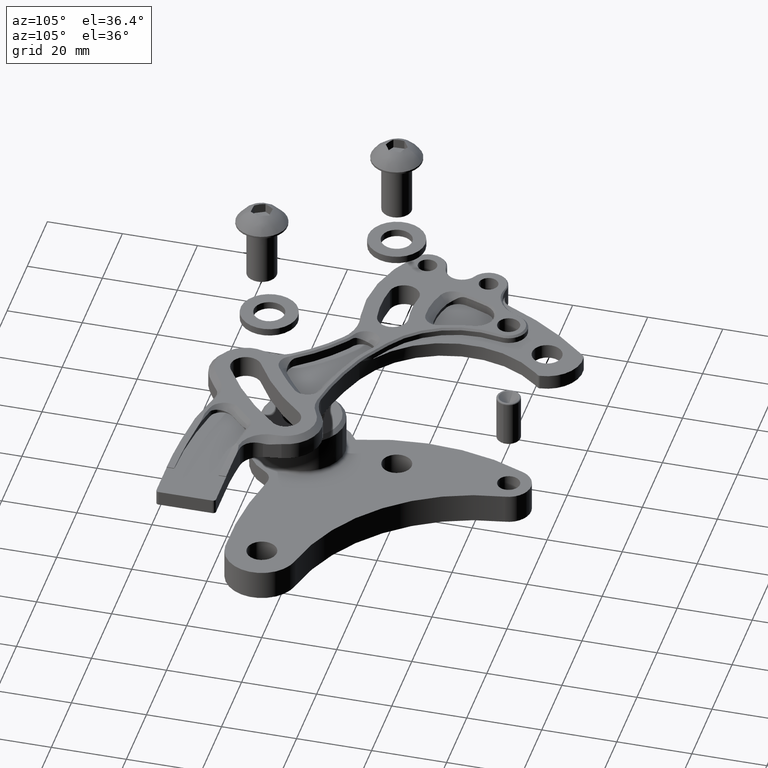
[diagram: clean part render]
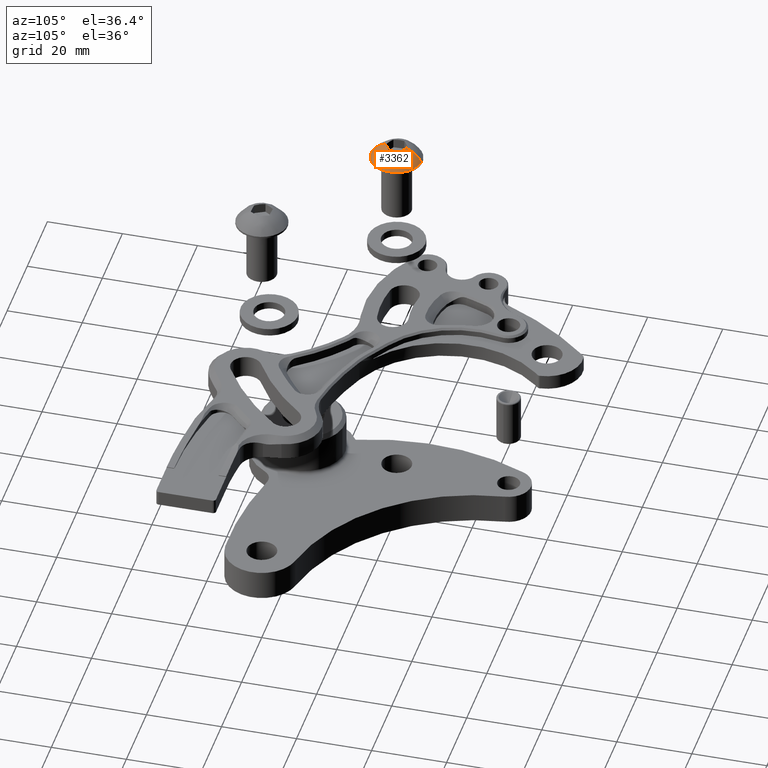
[diagram: same view with one face highlighted and labeled with its STEP entity id]
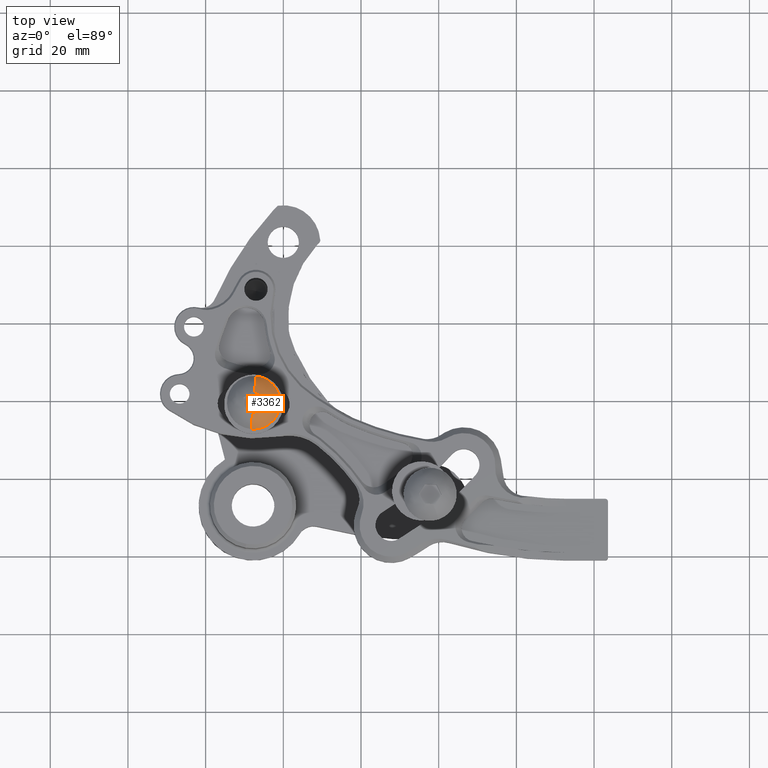
[diagram: same view with one face highlighted and labeled with its STEP entity id]
A machine part, auxiliary view. The second image highlights one B-rep face of the part: STEP entity #3362.
A second angle (top view) of the same face is appended — the face is thin or edge-on in the first view.
In plain terms, the highlighted face is a freeform B-spline surface patch.
Its self-contained STEP definition (entity closure, byte-faithful):
#61 = CARTESIAN_POINT ( 'NONE',  ( -0.8891558262419051450, -0.1385185032015558704, -3.009917503558934796E-15 ) ) ;
#153 = CIRCLE ( 'NONE', #5342, 0.3096579724409448398 ) ;
#343 = CARTESIAN_POINT ( 'NONE',  ( -0.4974286417322836273, 1.365923996832131609E-16, 0.0000000000000000000 ) ) ;
#363 = DIRECTION ( 'NONE',  ( -5.064886061246141354E-16, -1.000000000000000000, 0.0000000000000000000 ) ) ;
#440 = ORIENTED_EDGE ( 'NONE', *, *, #4424, .T. ) ;
#457 = EDGE_CURVE ( 'NONE', #6829, #3636, #4998, .T. ) ;
#507 = CARTESIAN_POINT ( 'NONE',  ( -0.7888430743799711431, -0.05528387702315540331, 0.09104925475390623912 ) ) ;
#508 = CARTESIAN_POINT ( 'NONE',  ( -0.7861286089843918523, -0.1116580418028125243, 0.01023047510062800348 ) ) ;
#539 = CARTESIAN_POINT ( 'NONE',  ( -0.7925491914403340887, 0.01328977699491042629, 0.09851710684902273418 ) ) ;
#637 = CARTESIAN_POINT ( 'NONE',  ( -0.6461732809827809287, 0.2715936158868180184, -2.960529082812903823E-15 ) ) ;
#687 = CARTESIAN_POINT ( 'NONE',  ( -0.7850251331520073927, -0.04358910116415917052, 0.1061899631744988998 ) ) ;
#690 = CARTESIAN_POINT ( 'NONE',  ( -0.8150160737517218035, -0.1385185032015542883, 0.2718797465088017562 ) ) ;
#909 = B_SPLINE_CURVE_WITH_KNOTS ( 'NONE', 3,
 ( #7916, #508, #6063, #2361 ),
 .UNSPECIFIED., .F., .F.,
 ( 4, 4 ),
 ( 1.939479807224432123E-18, 0.0004213416021494157684 ),
 .UNSPECIFIED. ) ;
#956 = DIRECTION ( 'NONE',  ( -6.616609865063113677E-16, 1.000000000000000000, -5.606626274356971109E-15 ) ) ;
#1125 = CARTESIAN_POINT ( 'NONE',  ( -0.7888430743799695888, -0.1020629804591411116, 0.03048642107153429898 ) ) ;
#1182 = CARTESIAN_POINT ( 'NONE',  ( -0.7850251331520061715, 0.07016865515397456565, 0.09084425052354555552 ) ) ;
#1281 = VERTEX_POINT ( 'NONE', #5251 ) ;
#1306 = CARTESIAN_POINT ( 'NONE',  ( -0.6461732809827807067, -0.2715936158868178518, 8.491872274439123159E-17 ) ) ;
#1359 = ORIENTED_EDGE ( 'NONE', *, *, #4377, .T. ) ;
#1705 = CARTESIAN_POINT ( 'NONE',  ( -0.4974286417322836273, 1.365923996832131609E-16, 0.0000000000000000000 ) ) ;
#1750 = CARTESIAN_POINT ( 'NONE',  ( -0.7888430743799684786, 0.05120902910095245786, 0.09340186929870464283 ) ) ;
#1774 = ORIENTED_EDGE ( 'NONE', *, *, #1798, .T. ) ;
#1798 = EDGE_CURVE ( 'NONE', #7428, #7864, #6279, .T. ) ;
#1901 = CARTESIAN_POINT ( 'NONE',  ( -0.6461732809827815949, 0.2715936158868183514, 0.05545681678418769994 ) ) ;
#1930 = CARTESIAN_POINT ( 'NONE',  ( -0.6180213140671360073, -0.2715936158868172412, 0.1032367842037665434 ) ) ;
#2021 = ORIENTED_EDGE ( 'NONE', *, *, #8017, .T. ) ;
#2308 = DIRECTION ( 'NONE',  ( -6.616609865063113677E-16, 1.000000000000000000, -5.606626274356971109E-15 ) ) ;
#2361 = CARTESIAN_POINT ( 'NONE',  ( -0.7878433562997785300, -0.1074586127721618573, 6.418806301509481145E-16 ) ) ;
#2509 = CARTESIAN_POINT ( 'NONE',  ( -0.5695114954361485404, 0.2715936158868187955, 0.1301116055840806363 ) ) ;
#2999 = CARTESIAN_POINT ( 'NONE',  ( -0.7878433562997817496, 0.1074586127721534334, -5.739860281769292440E-16 ) ) ;
#3019 = CARTESIAN_POINT ( 'NONE',  ( -0.7850251331520061715, 0.07016865515397456565, 0.09084425052354555552 ) ) ;
#3127 = CARTESIAN_POINT ( 'NONE',  ( -0.8891558262419069214, 0.1385185032015565920, 0.1460485756676682956 ) ) ;
#3361 = CARTESIAN_POINT ( 'NONE',  ( -0.6496062992125983815, 0.2696850393700793158, 1.567600251704168043E-17 ) ) ;
#3362 = ADVANCED_FACE ( 'NONE', ( #4553 ), #4045, .T. ) ;
#3472 = ORIENTED_EDGE ( 'NONE', *, *, #457, .T. ) ;
#3629 = CARTESIAN_POINT ( 'NONE',  ( -0.7888430743799696998, -0.02462947511113919644, 0.1036323443993416582 ) ) ;
#3636 = VERTEX_POINT ( 'NONE', #687 ) ;
#3761 = CARTESIAN_POINT ( 'NONE',  ( -0.6872627996227134162, 0.1385185032015578688, 0.3426560660222813248 ) ) ;
#3870 = VERTEX_POINT ( 'NONE', #4035 ) ;
#3951 = B_SPLINE_CURVE_WITH_KNOTS ( 'NONE', 3,
 ( #2999, #7337, #4875, #1182 ),
 .UNSPECIFIED., .F., .F.,
 ( 4, 4 ),
 ( 0.0004213416021498446787, 0.002915618859407499621 ),
 .UNSPECIFIED. ) ;
#4035 = CARTESIAN_POINT ( 'NONE',  ( -0.6496062992125986035, -0.2696850393700792603, -1.633024894796033938E-17 ) ) ;
#4045 =( BOUNDED_SURFACE ( )  B_SPLINE_SURFACE ( 3, 3, ( 
 ( #637, #1901, #6220, #2509 ),
 ( #6844, #3127, #7470, #3761 ),
 ( #61, #4384, #690, #5002 ),
 ( #1306, #5618, #1930, #6245 ) ),
 .UNSPECIFIED., .F., .F., .T. ) 
 B_SPLINE_SURFACE_WITH_KNOTS ( ( 4, 4 ),
 ( 4, 4 ),
 ( 0.0000000000000000000, 1.000000000000000000 ),
 ( 0.0000000000000000000, 1.000000000000000000 ),
 .UNSPECIFIED. ) 
 GEOMETRIC_REPRESENTATION_ITEM ( )  RATIONAL_B_SPLINE_SURFACE ( (
 ( 1.000000000000000000, 0.9077137875344268858, 0.9077137875344268858, 1.000000000000000000),
 ( 0.6535675971308730903, 0.5932523190014392656, 0.5932523190014392656, 0.6535675971308730903),
 ( 0.6535675971308730903, 0.5932523190014392656, 0.5932523190014392656, 0.6535675971308730903),
 ( 1.000000000000000000, 0.9077137875344268858, 0.9077137875344268858, 1.000000000000000000) ) ) 
 REPRESENTATION_ITEM ( '' )  SURFACE ( )  );
#4046 = DIRECTION ( 'NONE',  ( 1.000000000000000000, -6.247910885067006467E-16, -1.036970808195480352E-16 ) ) ;
#4377 = EDGE_CURVE ( 'NONE', #4777, #3870, #153, .T. ) ;
#4384 = CARTESIAN_POINT ( 'NONE',  ( -0.8891558262419066994, -0.1385185032015550377, 0.1460485756676698499 ) ) ;
#4424 = EDGE_CURVE ( 'NONE', #3636, #1281, #5078, .T. ) ;
#4553 = FACE_OUTER_BOUND ( 'NONE', #6333, .T. ) ;
#4647 = DIRECTION ( 'NONE',  ( 1.036970808195515481E-16, 5.606626274356971109E-15, 1.000000000000000000 ) ) ;
#4777 = VERTEX_POINT ( 'NONE', #6383 ) ;
#4820 = CARTESIAN_POINT ( 'NONE',  ( -0.7925491914403358651, -0.07867342874114845175, 0.06076783791271981455 ) ) ;
#4875 = CARTESIAN_POINT ( 'NONE',  ( -0.7915575397755447717, 0.08259864102669964292, 0.06056283368235908238 ) ) ;
#4998 = B_SPLINE_CURVE_WITH_KNOTS ( 'NONE', 3,
 ( #7336, #1750, #539, #3629, #7972 ),
 .UNSPECIFIED., .F., .F.,
 ( 4, 1, 4 ),
 ( 2.424349759030540154E-18, 0.001457809429703742004, 0.002915618859407481840 ),
 .UNSPECIFIED. ) ;
#5002 = CARTESIAN_POINT ( 'NONE',  ( -0.6872627996227134162, -0.1385185032015537887, 0.3426560660222828791 ) ) ;
#5078 = B_SPLINE_CURVE_WITH_KNOTS ( 'NONE', 3,
 ( #7294, #507, #4820, #1125, #5441 ),
 .UNSPECIFIED., .F., .F.,
 ( 4, 1, 4 ),
 ( 8.197027332698235974E-18, 0.001457809429703926969, 0.002915618859407845265 ),
 .UNSPECIFIED. ) ;
#5251 = CARTESIAN_POINT ( 'NONE',  ( -0.7850251331520062825, -0.1137577563181375456, 0.01534571265094169905 ) ) ;
#5328 = AXIS2_PLACEMENT_3D ( 'NONE', #343, #4647, #956 ) ;
#5342 = AXIS2_PLACEMENT_3D ( 'NONE', #1705, #6018, #2308 ) ;
#5435 = ORIENTED_EDGE ( 'NONE', *, *, #7100, .T. ) ;
#5441 = CARTESIAN_POINT ( 'NONE',  ( -0.7850251331520062825, -0.1137577563181375456, 0.01534571265094169905 ) ) ;
#5618 = CARTESIAN_POINT ( 'NONE',  ( -0.6461732809827811508, -0.2715936158868176298, 0.05545681678419078081 ) ) ;
#6018 = DIRECTION ( 'NONE',  ( 1.036970808195515481E-16, 5.606626274356971109E-15, 1.000000000000000000 ) ) ;
#6063 = CARTESIAN_POINT ( 'NONE',  ( -0.7870664245614178434, -0.1095583272874871422, 0.005115237550314284502 ) ) ;
#6220 = CARTESIAN_POINT ( 'NONE',  ( -0.6180213140671362293, 0.2715936158868186290, 0.1032367842037633099 ) ) ;
#6245 = CARTESIAN_POINT ( 'NONE',  ( -0.5695114954361482074, -0.2715936158868170747, 0.1301116055840838281 ) ) ;
#6279 = CIRCLE ( 'NONE', #5328, 0.3096579724409448398 ) ;
#6333 = EDGE_LOOP ( 'NONE', ( #6676, #1774, #5435, #3472, #440, #2021, #1359 ) ) ;
#6351 = AXIS2_PLACEMENT_3D ( 'NONE', #7766, #4046, #363 ) ;
#6383 = CARTESIAN_POINT ( 'NONE',  ( -0.7878433562997785300, -0.1074586127721618573, 6.418806301509481145E-16 ) ) ;
#6623 = EDGE_CURVE ( 'NONE', #7428, #3870, #6685, .T. ) ;
#6676 = ORIENTED_EDGE ( 'NONE', *, *, #6623, .F. ) ;
#6685 = CIRCLE ( 'NONE', #6351, 0.2696850393700793158 ) ;
#6829 = VERTEX_POINT ( 'NONE', #3019 ) ;
#6844 = CARTESIAN_POINT ( 'NONE',  ( -0.8891558262419051450, 0.1385185032015557871, -4.563160462627819226E-15 ) ) ;
#7100 = EDGE_CURVE ( 'NONE', #7864, #6829, #3951, .T. ) ;
#7167 = CARTESIAN_POINT ( 'NONE',  ( -0.7878433562997817496, 0.1074586127721534334, -5.739860281769292440E-16 ) ) ;
#7294 = CARTESIAN_POINT ( 'NONE',  ( -0.7850251331520073927, -0.04358910116415917052, 0.1061899631744988998 ) ) ;
#7336 = CARTESIAN_POINT ( 'NONE',  ( -0.7850251331520061715, 0.07016865515397456565, 0.09084425052354555552 ) ) ;
#7337 = CARTESIAN_POINT ( 'NONE',  ( -0.7924426722836498405, 0.09502862689942584429, 0.03028141684118083876 ) ) ;
#7428 = VERTEX_POINT ( 'NONE', #3361 ) ;
#7470 = CARTESIAN_POINT ( 'NONE',  ( -0.8150160737517220255, 0.1385185032015573414, 0.2718797465088000354 ) ) ;
#7766 = CARTESIAN_POINT ( 'NONE',  ( -0.6496062992125984925, 3.820010228058302014E-17, -1.633024894796033938E-17 ) ) ;
#7864 = VERTEX_POINT ( 'NONE', #7167 ) ;
#7916 = CARTESIAN_POINT ( 'NONE',  ( -0.7850251331520062825, -0.1137577563181375456, 0.01534571265094169905 ) ) ;
#7972 = CARTESIAN_POINT ( 'NONE',  ( -0.7850251331520073927, -0.04358910116415917052, 0.1061899631744988998 ) ) ;
#8017 = EDGE_CURVE ( 'NONE', #1281, #4777, #909, .T. ) ;